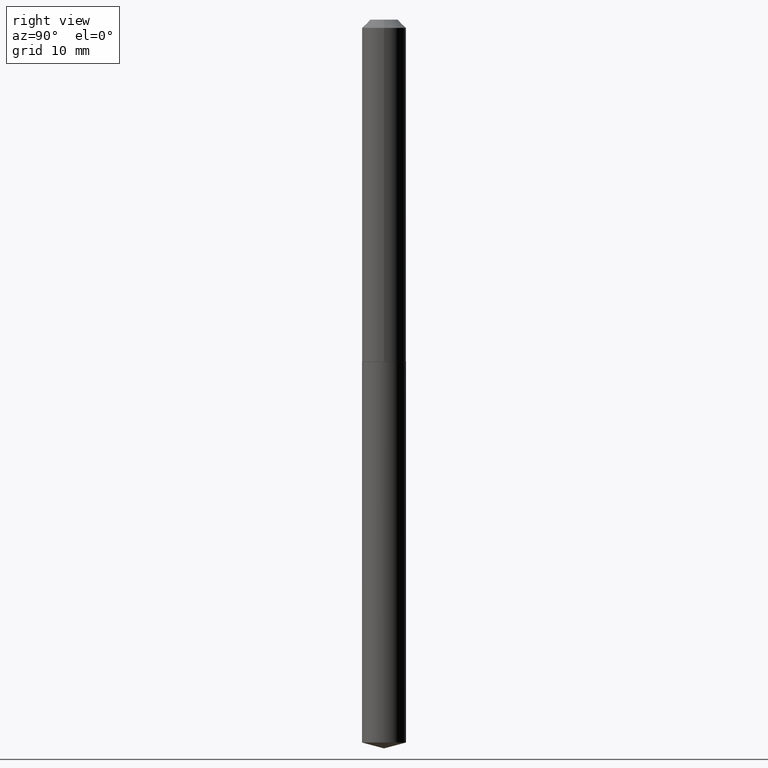
[diagram: clean part render]
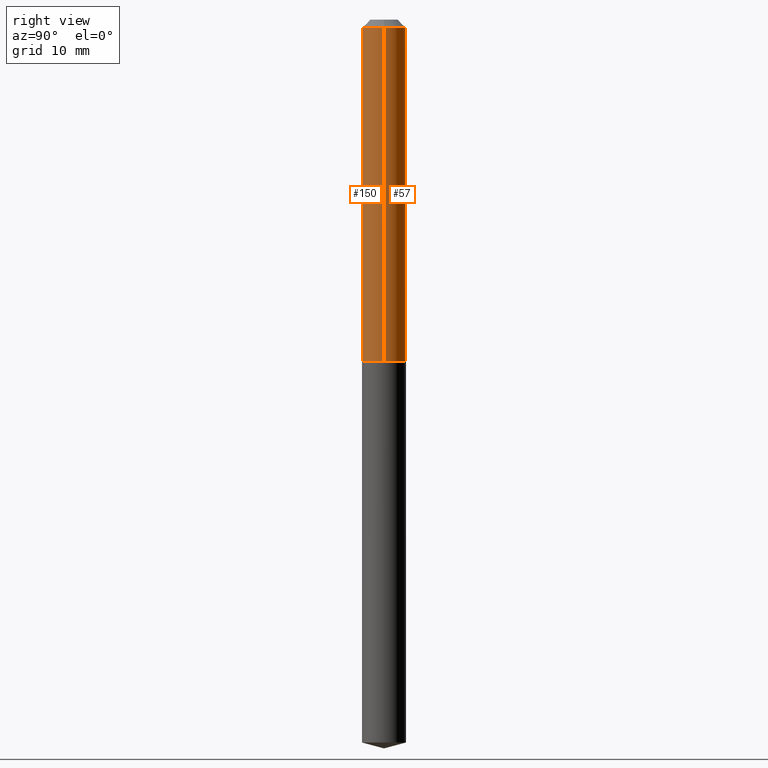
[diagram: same view with one multi-face feature highlighted, each face labeled with its STEP entity id]
A machine part, right view. The highlighted faces form ONE feature: a constant-radius fillet chain: 2 tangent blend faces with common blend radius 2.1082 mm. The faces share edges in the B-rep.
Their STEP definitions:
[1] entity #57 (Cylinder):
#3 = DIRECTION ( 'NONE',  ( 1.000000000000000000, -6.982962677686270655E-15, 0.000000000000000000 ) ) ;
#6 = AXIS2_PLACEMENT_3D ( 'NONE', #174, #266, #3 ) ;
#13 = EDGE_CURVE ( 'NONE', #109, #20, #61, .T. ) ;
#16 = ORIENTED_EDGE ( 'NONE', *, *, #13, .T. ) ;
#20 = VERTEX_POINT ( 'NONE', #35 ) ;
#35 = CARTESIAN_POINT ( 'NONE',  ( -0.08300000000000000433, -1.717682259127079383E-15, -0.03125000000000020123 ) ) ;
#45 = ORIENTED_EDGE ( 'NONE', *, *, #124, .T. ) ;
#52 = VECTOR ( 'NONE', #219, 39.37007874015748143 ) ;
#55 = VERTEX_POINT ( 'NONE', #235 ) ;
#56 = DIRECTION ( 'NONE',  ( 1.000000000000000000, -6.982962677686266711E-15, 0.000000000000000000 ) ) ;
#57 = ADVANCED_FACE ( 'NONE', ( #89 ), #293, .T. ) ;
#61 = LINE ( 'NONE', #122, #75 ) ;
#75 = VECTOR ( 'NONE', #238, 39.37007874015748143 ) ;
#89 = FACE_OUTER_BOUND ( 'NONE', #251, .T. ) ;
#109 = VERTEX_POINT ( 'NONE', #327 ) ;
#122 = CARTESIAN_POINT ( 'NONE',  ( -0.08300000000000010147, 5.897504706808838753E-16, -4.082716124911576462E-30 ) ) ;
#124 = EDGE_CURVE ( 'NONE', #55, #109, #186, .T. ) ;
#167 = DIRECTION ( 'NONE',  ( -2.445468806185136597E-29, 3.491481338843145583E-15, 1.000000000000000000 ) ) ;
#174 = CARTESIAN_POINT ( 'NONE',  ( 3.155877494381918608E-29, -4.505756667777078994E-15, -1.290499999999999758 ) ) ;
#186 = CIRCLE ( 'NONE', #6, 0.08300000000000018474 ) ;
#187 = VERTEX_POINT ( 'NONE', #243 ) ;
#198 = ORIENTED_EDGE ( 'NONE', *, *, #369, .F. ) ;
#200 = DIRECTION ( 'NONE',  ( 1.000000000000000000, -6.982962677686265922E-15, 4.876176775795935232E-29 ) ) ;
#217 = EDGE_CURVE ( 'NONE', #187, #20, #371, .T. ) ;
#219 = DIRECTION ( 'NONE',  ( -2.445468806185136877E-29, 3.491481338843145188E-15, 1.000000000000000000 ) ) ;
#232 = DIRECTION ( 'NONE',  ( -2.445468806185136597E-29, 3.491481338843145583E-15, 1.000000000000000000 ) ) ;
#235 = CARTESIAN_POINT ( 'NONE',  ( 0.08300000000000018474, -5.085342570025040266E-15, -1.290499999999999758 ) ) ;
#238 = DIRECTION ( 'NONE',  ( -2.445468806185136877E-29, 3.491481338843145188E-15, 1.000000000000000000 ) ) ;
#243 = CARTESIAN_POINT ( 'NONE',  ( 0.08300000000000000433, -6.886946940868090917E-16, -0.03125000000000020123 ) ) ;
#251 = EDGE_LOOP ( 'NONE', ( #45, #16, #254, #198 ) ) ;
#254 = ORIENTED_EDGE ( 'NONE', *, *, #217, .F. ) ;
#266 = DIRECTION ( 'NONE',  ( -2.445468806185136597E-29, 3.491481338843145583E-15, 1.000000000000000000 ) ) ;
#275 = AXIS2_PLACEMENT_3D ( 'NONE', #320, #167, #56 ) ;
#289 = LINE ( 'NONE', #382, #52 ) ;
#293 = CYLINDRICAL_SURFACE ( 'NONE', #383, 0.08300000000000010147 ) ;
#320 = CARTESIAN_POINT ( 'NONE',  ( 7.642090019328600035E-31, -1.091087918388489897E-16, -0.03125000000000020123 ) ) ;
#327 = CARTESIAN_POINT ( 'NONE',  ( -0.08300000000000018474, -3.916006197096194527E-15, -1.290499999999999758 ) ) ;
#361 = CARTESIAN_POINT ( 'NONE',  ( 0.000000000000000000, 0.000000000000000000, 0.000000000000000000 ) ) ;
#369 = EDGE_CURVE ( 'NONE', #55, #187, #289, .T. ) ;
#371 = CIRCLE ( 'NONE', #275, 0.08300000000000000433 ) ;
#382 = CARTESIAN_POINT ( 'NONE',  ( 0.08300000000000010147, -5.795859022479607799E-16, 4.047226723910630996E-30 ) ) ;
#383 = AXIS2_PLACEMENT_3D ( 'NONE', #361, #232, #200 ) ;
[2] entity #150 (Cylinder):
#2 = CIRCLE ( 'NONE', #229, 0.08300000000000000433 ) ;
#5 = CYLINDRICAL_SURFACE ( 'NONE', #60, 0.08300000000000010147 ) ;
#8 = EDGE_CURVE ( 'NONE', #20, #187, #2, .T. ) ;
#13 = EDGE_CURVE ( 'NONE', #109, #20, #61, .T. ) ;
#20 = VERTEX_POINT ( 'NONE', #35 ) ;
#23 = ORIENTED_EDGE ( 'NONE', *, *, #369, .T. ) ;
#35 = CARTESIAN_POINT ( 'NONE',  ( -0.08300000000000000433, -1.717682259127079383E-15, -0.03125000000000020123 ) ) ;
#52 = VECTOR ( 'NONE', #219, 39.37007874015748143 ) ;
#55 = VERTEX_POINT ( 'NONE', #235 ) ;
#60 = AXIS2_PLACEMENT_3D ( 'NONE', #180, #212, #304 ) ;
#61 = LINE ( 'NONE', #122, #75 ) ;
#63 = DIRECTION ( 'NONE',  ( 1.000000000000000000, -6.982962677686266711E-15, 0.000000000000000000 ) ) ;
#71 = FACE_OUTER_BOUND ( 'NONE', #189, .T. ) ;
#75 = VECTOR ( 'NONE', #238, 39.37007874015748143 ) ;
#93 = AXIS2_PLACEMENT_3D ( 'NONE', #162, #115, #372 ) ;
#109 = VERTEX_POINT ( 'NONE', #327 ) ;
#114 = ORIENTED_EDGE ( 'NONE', *, *, #213, .T. ) ;
#115 = DIRECTION ( 'NONE',  ( -2.445468806185136597E-29, 3.491481338843145583E-15, 1.000000000000000000 ) ) ;
#122 = CARTESIAN_POINT ( 'NONE',  ( -0.08300000000000010147, 5.897504706808838753E-16, -4.082716124911576462E-30 ) ) ;
#143 = CARTESIAN_POINT ( 'NONE',  ( 7.642090019328600035E-31, -1.091087918388489897E-16, -0.03125000000000020123 ) ) ;
#150 = ADVANCED_FACE ( 'NONE', ( #71 ), #5, .T. ) ;
#162 = CARTESIAN_POINT ( 'NONE',  ( 3.155877494381918608E-29, -4.505756667777078994E-15, -1.290499999999999758 ) ) ;
#180 = CARTESIAN_POINT ( 'NONE',  ( 0.000000000000000000, 0.000000000000000000, 0.000000000000000000 ) ) ;
#187 = VERTEX_POINT ( 'NONE', #243 ) ;
#189 = EDGE_LOOP ( 'NONE', ( #247, #114, #23, #313 ) ) ;
#212 = DIRECTION ( 'NONE',  ( -2.445468806185136597E-29, 3.491481338843145583E-15, 1.000000000000000000 ) ) ;
#213 = EDGE_CURVE ( 'NONE', #109, #55, #216, .T. ) ;
#216 = CIRCLE ( 'NONE', #93, 0.08300000000000018474 ) ;
#219 = DIRECTION ( 'NONE',  ( -2.445468806185136877E-29, 3.491481338843145188E-15, 1.000000000000000000 ) ) ;
#228 = DIRECTION ( 'NONE',  ( -2.445468806185136597E-29, 3.491481338843145583E-15, 1.000000000000000000 ) ) ;
#229 = AXIS2_PLACEMENT_3D ( 'NONE', #143, #228, #63 ) ;
#235 = CARTESIAN_POINT ( 'NONE',  ( 0.08300000000000018474, -5.085342570025040266E-15, -1.290499999999999758 ) ) ;
#238 = DIRECTION ( 'NONE',  ( -2.445468806185136877E-29, 3.491481338843145188E-15, 1.000000000000000000 ) ) ;
#243 = CARTESIAN_POINT ( 'NONE',  ( 0.08300000000000000433, -6.886946940868090917E-16, -0.03125000000000020123 ) ) ;
#247 = ORIENTED_EDGE ( 'NONE', *, *, #13, .F. ) ;
#289 = LINE ( 'NONE', #382, #52 ) ;
#304 = DIRECTION ( 'NONE',  ( 1.000000000000000000, -6.982962677686265922E-15, 4.876176775795935232E-29 ) ) ;
#313 = ORIENTED_EDGE ( 'NONE', *, *, #8, .F. ) ;
#327 = CARTESIAN_POINT ( 'NONE',  ( -0.08300000000000018474, -3.916006197096194527E-15, -1.290499999999999758 ) ) ;
#369 = EDGE_CURVE ( 'NONE', #55, #187, #289, .T. ) ;
#372 = DIRECTION ( 'NONE',  ( 1.000000000000000000, -6.982962677686270655E-15, 0.000000000000000000 ) ) ;
#382 = CARTESIAN_POINT ( 'NONE',  ( 0.08300000000000010147, -5.795859022479607799E-16, 4.047226723910630996E-30 ) ) ;